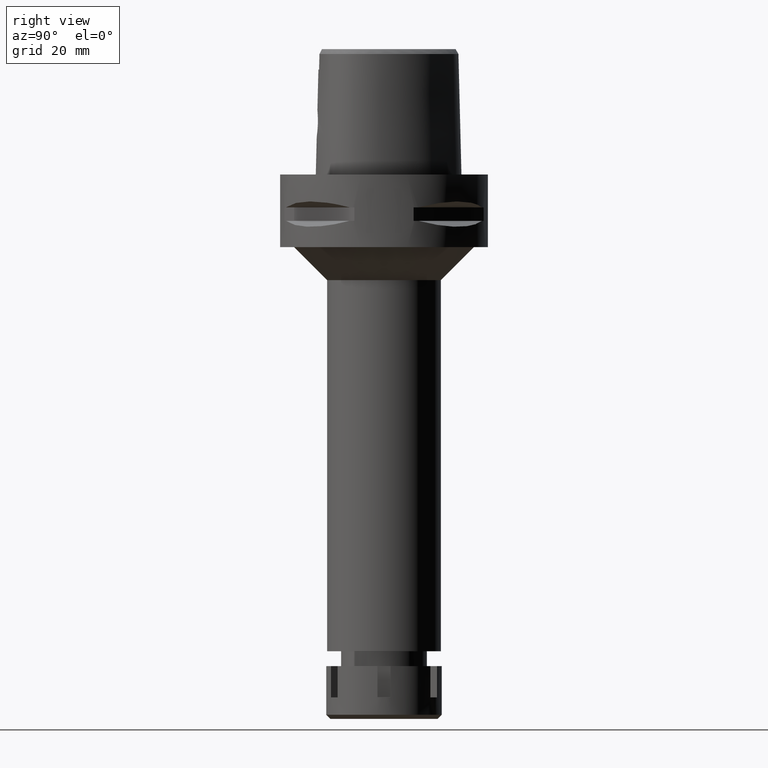
[diagram: clean part render]
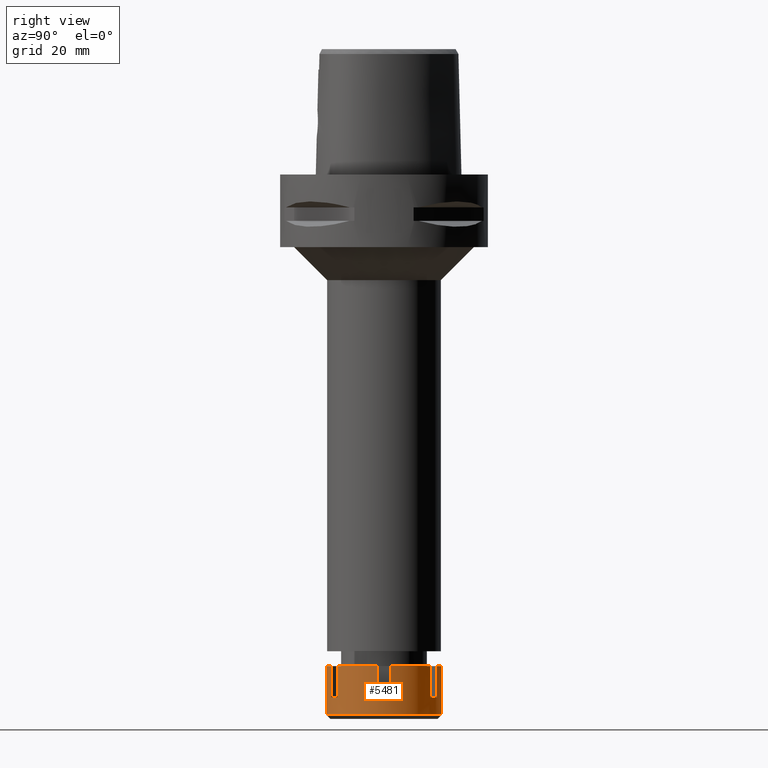
[diagram: same view with one face highlighted and labeled with its STEP entity id]
A machine part, right view. The second image highlights one B-rep face of the part: STEP entity #5481.
In plain terms, the highlighted cylindrical surface (partial cylindrical patch) has radius 17.5 mm, axis along (0, 0, -1).
Its self-contained STEP definition (entity closure, byte-faithful):
#35 = AXIS2_PLACEMENT_3D ( 'NONE', #1630, #1207, #2016 ) ;
#56 = VERTEX_POINT ( 'NONE', #77 ) ;
#65 = EDGE_CURVE ( 'NONE', #81, #1778, #3849, .T. ) ;
#69 = DIRECTION ( 'NONE',  ( 0.0000000000000000000, -1.000000000000000000, 0.0000000000000000000 ) ) ;
#72 = EDGE_CURVE ( 'NONE', #586, #4992, #1012, .T. ) ;
#77 = CARTESIAN_POINT ( 'NONE',  ( 10.42472013293000010, 14.05614492490999901, 0.0000000000000000000 ) ) ;
#81 = VERTEX_POINT ( 'NONE', #4920 ) ;
#93 = ORIENTED_EDGE ( 'NONE', *, *, #5436, .T. ) ;
#94 = FACE_OUTER_BOUND ( 'NONE', #4925, .T. ) ;
#189 = DIRECTION ( 'NONE',  ( 0.0000000000000000000, 1.000000000000000000, 0.0000000000000000000 ) ) ;
#206 = DIRECTION ( 'NONE',  ( 0.5956982933103188715, -0.8032082814234259294, 0.0000000000000000000 ) ) ;
#300 = CARTESIAN_POINT ( 'NONE',  ( 0.0000000000000000000, 0.0000000000000000000, -14.75000000000000000 ) ) ;
#308 = LINE ( 'NONE', #2948, #5507 ) ;
#340 = VERTEX_POINT ( 'NONE', #3105 ) ;
#362 = DIRECTION ( 'NONE',  ( 0.0000000000000000000, 0.0000000000000000000, -1.000000000000000000 ) ) ;
#449 = CARTESIAN_POINT ( 'NONE',  ( 6.960618517787000137, -16.05614492491000078, 0.0000000000000000000 ) ) ;
#486 = EDGE_CURVE ( 'NONE', #340, #3056, #5434, .T. ) ;
#530 = DIRECTION ( 'NONE',  ( 0.0000000000000000000, 0.0000000000000000000, -1.000000000000000000 ) ) ;
#586 = VERTEX_POINT ( 'NONE', #5155 ) ;
#621 = VERTEX_POINT ( 'NONE', #4323 ) ;
#634 = DIRECTION ( 'NONE',  ( 0.0000000000000000000, 0.0000000000000000000, -1.000000000000000000 ) ) ;
#649 = CARTESIAN_POINT ( 'NONE',  ( 0.0000000000000000000, 0.0000000000000000000, -9.500000000000000000 ) ) ;
#693 = VECTOR ( 'NONE', #530, 1000.000000000000000 ) ;
#718 = ORIENTED_EDGE ( 'NONE', *, *, #4849, .T. ) ;
#732 = CARTESIAN_POINT ( 'NONE',  ( 0.0000000000000000000, -17.50000000000000000, 0.0000000000000000000 ) ) ;
#787 = EDGE_CURVE ( 'NONE', #56, #5100, #1398, .T. ) ;
#800 = DIRECTION ( 'NONE',  ( 0.0000000000000000000, 0.0000000000000000000, -1.000000000000000000 ) ) ;
#848 = CARTESIAN_POINT ( 'NONE',  ( 17.38533865071000051, 2.000000000000000000, 0.0000000000000000000 ) ) ;
#1012 = LINE ( 'NONE', #3139, #4549 ) ;
#1045 = DIRECTION ( 'NONE',  ( 0.0000000000000000000, 0.0000000000000000000, 1.000000000000000000 ) ) ;
#1082 = CARTESIAN_POINT ( 'NONE',  ( 17.38533865071000051, -2.000000000000000000, 0.0000000000000000000 ) ) ;
#1108 = VERTEX_POINT ( 'NONE', #1617 ) ;
#1109 = CARTESIAN_POINT ( 'NONE',  ( 0.0000000000000000000, 0.0000000000000000000, 0.0000000000000000000 ) ) ;
#1144 = VECTOR ( 'NONE', #3557, 1000.000000000000000 ) ;
#1207 = DIRECTION ( 'NONE',  ( 0.0000000000000000000, 0.0000000000000000000, -1.000000000000000000 ) ) ;
#1280 = VERTEX_POINT ( 'NONE', #2696 ) ;
#1282 = LINE ( 'NONE', #2348, #5261 ) ;
#1302 = AXIS2_PLACEMENT_3D ( 'NONE', #2544, #5562, #5141 ) ;
#1398 = CIRCLE ( 'NONE', #4537, 17.50000000000000355 ) ;
#1409 = AXIS2_PLACEMENT_3D ( 'NONE', #3164, #5315, #1503 ) ;
#1503 = DIRECTION ( 'NONE',  ( 0.3977496295877935850, -0.9174939957093850573, 0.0000000000000000000 ) ) ;
#1517 = ORIENTED_EDGE ( 'NONE', *, *, #5054, .F. ) ;
#1521 = EDGE_CURVE ( 'NONE', #1280, #621, #4455, .T. ) ;
#1530 = CARTESIAN_POINT ( 'NONE',  ( 17.38533865071000051, -2.000000000000000000, -9.500000000000000000 ) ) ;
#1544 = ORIENTED_EDGE ( 'NONE', *, *, #2706, .F. ) ;
#1617 = CARTESIAN_POINT ( 'NONE',  ( 17.38533865071000051, 2.000000000000000000, -9.500000000000000000 ) ) ;
#1630 = CARTESIAN_POINT ( 'NONE',  ( 0.0000000000000000000, 0.0000000000000000000, -9.500000000000000000 ) ) ;
#1653 = AXIS2_PLACEMENT_3D ( 'NONE', #4121, #4924, #189 ) ;
#1674 = LINE ( 'NONE', #2949, #2036 ) ;
#1769 = CARTESIAN_POINT ( 'NONE',  ( 0.0000000000000000000, 17.50000000000000000, 0.0000000000000000000 ) ) ;
#1778 = VERTEX_POINT ( 'NONE', #732 ) ;
#1794 = CARTESIAN_POINT ( 'NONE',  ( 0.0000000000000000000, 0.0000000000000000000, 0.0000000000000000000 ) ) ;
#1904 = EDGE_CURVE ( 'NONE', #1108, #4765, #3589, .T. ) ;
#2016 = DIRECTION ( 'NONE',  ( 0.3977496295879985877, 0.9174939957092961285, 0.0000000000000000000 ) ) ;
#2036 = VECTOR ( 'NONE', #362, 1000.000000000000000 ) ;
#2126 = EDGE_CURVE ( 'NONE', #2382, #4765, #1674, .T. ) ;
#2157 = DIRECTION ( 'NONE',  ( 0.0000000000000000000, -1.121909582779000024E-14, -1.000000000000000000 ) ) ;
#2344 = DIRECTION ( 'NONE',  ( 0.0000000000000000000, 0.0000000000000000000, -1.000000000000000000 ) ) ;
#2348 = CARTESIAN_POINT ( 'NONE',  ( 17.38533865071000051, 2.000000000000000000, -9.500000000000000000 ) ) ;
#2366 = CARTESIAN_POINT ( 'NONE',  ( 0.0000000000000000000, 0.0000000000000000000, -9.500000000000000000 ) ) ;
#2382 = VERTEX_POINT ( 'NONE', #1082 ) ;
#2516 = ORIENTED_EDGE ( 'NONE', *, *, #2664, .F. ) ;
#2517 = CARTESIAN_POINT ( 'NONE',  ( 6.960618517787000137, -16.05614492491000078, -9.500000000000000000 ) ) ;
#2544 = CARTESIAN_POINT ( 'NONE',  ( 0.0000000000000000000, 0.0000000000000000000, 0.0000000000000000000 ) ) ;
#2550 = VERTEX_POINT ( 'NONE', #4151 ) ;
#2562 = ORIENTED_EDGE ( 'NONE', *, *, #4177, .T. ) ;
#2581 = AXIS2_PLACEMENT_3D ( 'NONE', #300, #3815, #4678 ) ;
#2586 = VECTOR ( 'NONE', #2157, 1000.000000000000000 ) ;
#2611 = CARTESIAN_POINT ( 'NONE',  ( 10.42472013293000010, 14.05614492490999901, 0.0000000000000000000 ) ) ;
#2664 = EDGE_CURVE ( 'NONE', #56, #3056, #5126, .T. ) ;
#2696 = CARTESIAN_POINT ( 'NONE',  ( 0.0000000000000000000, -17.50000000000000000, -14.75000000000000000 ) ) ;
#2706 = EDGE_CURVE ( 'NONE', #1108, #5100, #1282, .T. ) ;
#2709 = ORIENTED_EDGE ( 'NONE', *, *, #787, .T. ) ;
#2820 = CIRCLE ( 'NONE', #1653, 17.50000000000000000 ) ;
#2824 = VECTOR ( 'NONE', #3821, 1000.000000000000000 ) ;
#2925 = CIRCLE ( 'NONE', #1302, 17.50000000000000711 ) ;
#2948 = CARTESIAN_POINT ( 'NONE',  ( 0.0000000000000000000, -17.50000000000000000, 0.0000000000000000000 ) ) ;
#2949 = CARTESIAN_POINT ( 'NONE',  ( 17.38533865071000051, -2.000000000000000000, 0.0000000000000000000 ) ) ;
#2974 = ORIENTED_EDGE ( 'NONE', *, *, #1904, .T. ) ;
#2990 = CARTESIAN_POINT ( 'NONE',  ( 6.960618517789000315, 16.05614492491000078, 0.0000000000000000000 ) ) ;
#3027 = CARTESIAN_POINT ( 'NONE',  ( 10.42472013293000010, -14.05614492490999901, 0.0000000000000000000 ) ) ;
#3055 = EDGE_CURVE ( 'NONE', #586, #5407, #4291, .T. ) ;
#3056 = VERTEX_POINT ( 'NONE', #4524 ) ;
#3070 = LINE ( 'NONE', #1769, #693 ) ;
#3105 = CARTESIAN_POINT ( 'NONE',  ( 6.960618517790000404, 16.05614492491000078, -9.500000000000000000 ) ) ;
#3139 = CARTESIAN_POINT ( 'NONE',  ( 10.42472013293000010, -14.05614492490999901, -9.500000000000000000 ) ) ;
#3164 = CARTESIAN_POINT ( 'NONE',  ( 0.0000000000000000000, 0.0000000000000000000, 0.0000000000000000000 ) ) ;
#3202 = VERTEX_POINT ( 'NONE', #2990 ) ;
#3360 = ORIENTED_EDGE ( 'NONE', *, *, #3055, .T. ) ;
#3404 = EDGE_CURVE ( 'NONE', #2550, #621, #3070, .T. ) ;
#3499 = EDGE_CURVE ( 'NONE', #340, #3202, #3968, .T. ) ;
#3557 = DIRECTION ( 'NONE',  ( 0.0000000000000000000, 0.0000000000000000000, 1.000000000000000000 ) ) ;
#3582 = DIRECTION ( 'NONE',  ( 0.0000000000000000000, 0.0000000000000000000, -1.000000000000000000 ) ) ;
#3589 = CIRCLE ( 'NONE', #4913, 17.50000000000000711 ) ;
#3710 = ORIENTED_EDGE ( 'NONE', *, *, #1521, .T. ) ;
#3798 = ORIENTED_EDGE ( 'NONE', *, *, #65, .T. ) ;
#3815 = DIRECTION ( 'NONE',  ( 0.0000000000000000000, 0.0000000000000000000, 1.000000000000000000 ) ) ;
#3821 = DIRECTION ( 'NONE',  ( 0.0000000000000000000, 0.0000000000000000000, -1.000000000000000000 ) ) ;
#3849 = CIRCLE ( 'NONE', #1409, 17.49999999999999645 ) ;
#3897 = LINE ( 'NONE', #449, #2824 ) ;
#3968 = LINE ( 'NONE', #3994, #1144 ) ;
#3994 = CARTESIAN_POINT ( 'NONE',  ( 6.960618517789000315, 16.05614492491000078, -9.500000000000000000 ) ) ;
#3996 = AXIS2_PLACEMENT_3D ( 'NONE', #1794, #2344, #69 ) ;
#4050 = ORIENTED_EDGE ( 'NONE', *, *, #72, .F. ) ;
#4121 = CARTESIAN_POINT ( 'NONE',  ( 0.0000000000000000000, 0.0000000000000000000, 0.0000000000000000000 ) ) ;
#4151 = CARTESIAN_POINT ( 'NONE',  ( 0.0000000000000000000, 17.50000000000000000, 0.0000000000000000000 ) ) ;
#4177 = EDGE_CURVE ( 'NONE', #2550, #3202, #2820, .T. ) ;
#4291 = CIRCLE ( 'NONE', #5263, 17.50000000000000355 ) ;
#4323 = CARTESIAN_POINT ( 'NONE',  ( 0.0000000000000000000, 17.50000000000000000, -14.75000000000000000 ) ) ;
#4455 = CIRCLE ( 'NONE', #2581, 17.50000000000000000 ) ;
#4524 = CARTESIAN_POINT ( 'NONE',  ( 10.42472013291999922, 14.05614492490999901, -9.500000000000000000 ) ) ;
#4537 = AXIS2_PLACEMENT_3D ( 'NONE', #1109, #634, #5354 ) ;
#4549 = VECTOR ( 'NONE', #1045, 1000.000000000000000 ) ;
#4621 = ORIENTED_EDGE ( 'NONE', *, *, #3404, .F. ) ;
#4678 = DIRECTION ( 'NONE',  ( 0.0000000000000000000, -1.000000000000000000, 0.0000000000000000000 ) ) ;
#4765 = VERTEX_POINT ( 'NONE', #1530 ) ;
#4803 = CYLINDRICAL_SURFACE ( 'NONE', #3996, 17.50000000000000000 ) ;
#4849 = EDGE_CURVE ( 'NONE', #1778, #1280, #308, .T. ) ;
#4897 = ORIENTED_EDGE ( 'NONE', *, *, #3499, .F. ) ;
#4907 = DIRECTION ( 'NONE',  ( 0.9934479228979277154, 0.1142857142857031660, 0.0000000000000000000 ) ) ;
#4913 = AXIS2_PLACEMENT_3D ( 'NONE', #2366, #3582, #4907 ) ;
#4917 = DIRECTION ( 'NONE',  ( 0.0000000000000000000, 0.0000000000000000000, -1.000000000000000000 ) ) ;
#4920 = CARTESIAN_POINT ( 'NONE',  ( 6.960618517787000137, -16.05614492491000078, 0.0000000000000000000 ) ) ;
#4924 = DIRECTION ( 'NONE',  ( 0.0000000000000000000, 0.0000000000000000000, -1.000000000000000000 ) ) ;
#4925 = EDGE_LOOP ( 'NONE', ( #2516, #2709, #1544, #2974, #5187, #93, #4050, #3360, #1517, #3798, #718, #3710, #4621, #2562, #4897, #5014 ) ) ;
#4992 = VERTEX_POINT ( 'NONE', #3027 ) ;
#5014 = ORIENTED_EDGE ( 'NONE', *, *, #486, .T. ) ;
#5054 = EDGE_CURVE ( 'NONE', #81, #5407, #3897, .T. ) ;
#5100 = VERTEX_POINT ( 'NONE', #848 ) ;
#5126 = LINE ( 'NONE', #2611, #2586 ) ;
#5141 = DIRECTION ( 'NONE',  ( 0.9934479228979277154, -0.1142857142857031660, 0.0000000000000000000 ) ) ;
#5155 = CARTESIAN_POINT ( 'NONE',  ( 10.42472013293000010, -14.05614492490999901, -9.500000000000000000 ) ) ;
#5187 = ORIENTED_EDGE ( 'NONE', *, *, #2126, .F. ) ;
#5255 = DIRECTION ( 'NONE',  ( 0.0000000000000000000, 0.0000000000000000000, 1.000000000000000000 ) ) ;
#5261 = VECTOR ( 'NONE', #5255, 1000.000000000000000 ) ;
#5263 = AXIS2_PLACEMENT_3D ( 'NONE', #649, #4917, #206 ) ;
#5315 = DIRECTION ( 'NONE',  ( 0.0000000000000000000, 0.0000000000000000000, -1.000000000000000000 ) ) ;
#5354 = DIRECTION ( 'NONE',  ( 0.5956982933099820299, 0.8032082814236758406, 0.0000000000000000000 ) ) ;
#5407 = VERTEX_POINT ( 'NONE', #2517 ) ;
#5434 = CIRCLE ( 'NONE', #35, 17.49999999999999645 ) ;
#5436 = EDGE_CURVE ( 'NONE', #2382, #4992, #2925, .T. ) ;
#5481 = ADVANCED_FACE ( 'NONE', ( #94 ), #4803, .T. ) ;
#5507 = VECTOR ( 'NONE', #800, 1000.000000000000000 ) ;
#5562 = DIRECTION ( 'NONE',  ( 0.0000000000000000000, 0.0000000000000000000, -1.000000000000000000 ) ) ;